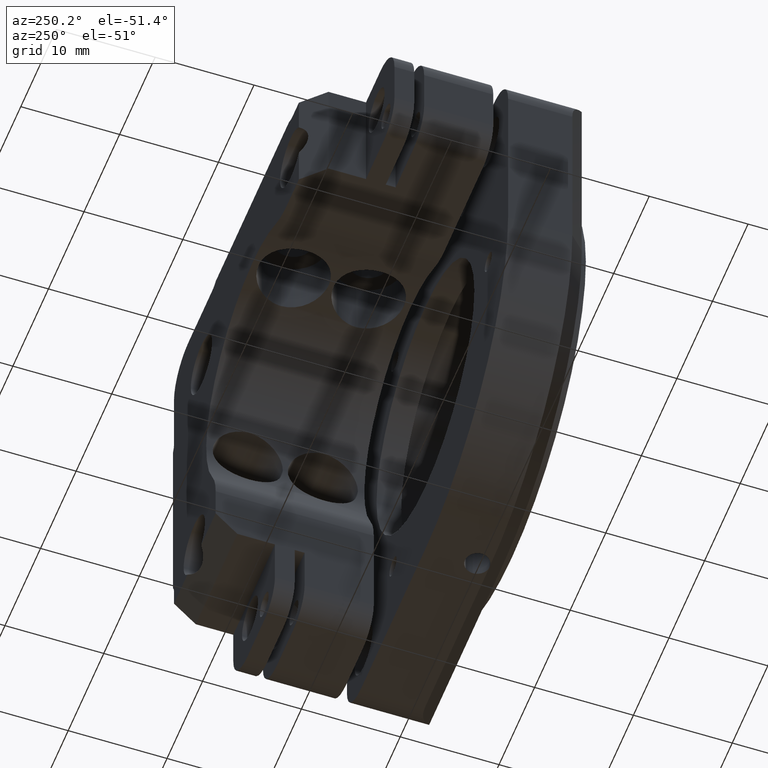
[diagram: clean part render]
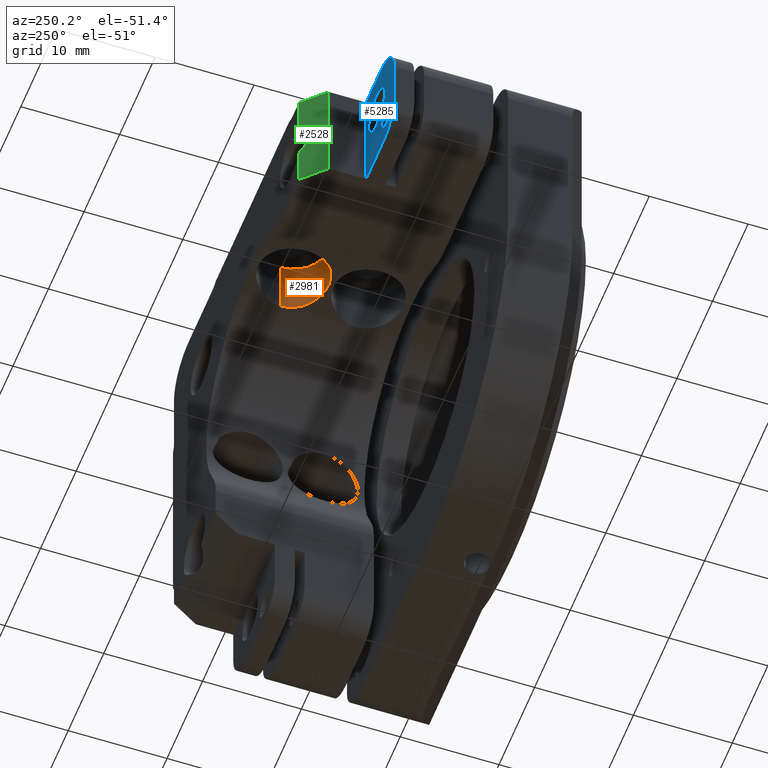
[diagram: same view with three faces highlighted in distinct colors, each labeled with its STEP entity id]
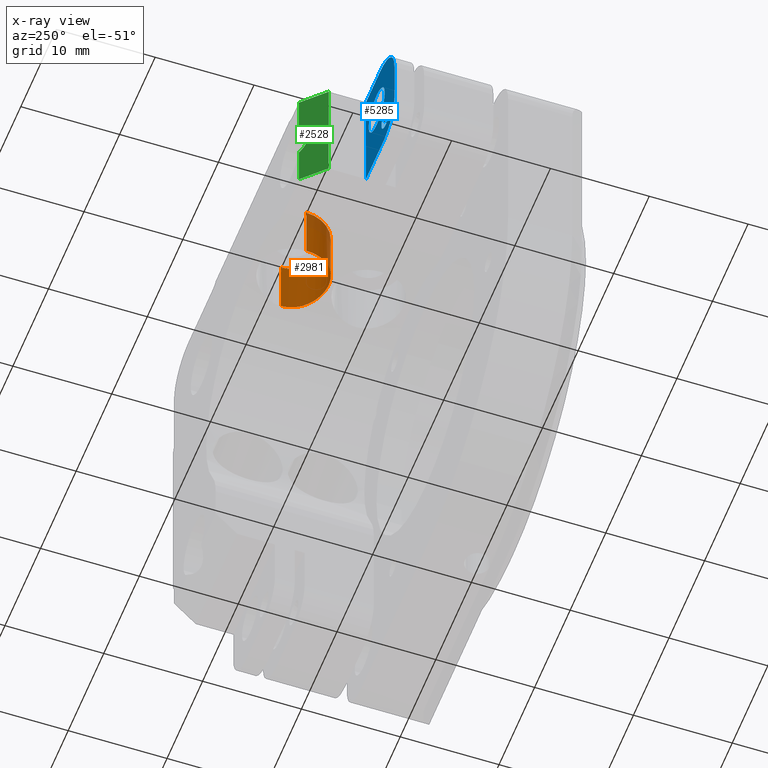
[diagram: x-ray of the same camera — body ghosted, the three highlighted faces saturated]
A machine part, auxiliary view with three faces highlighted in distinct colors.
The next image is the same camera in x-ray (body ghosted, the three faces saturated) — at least one of them is partly hidden behind the body in this view.
Their STEP definitions:

[orange] entity #2981 — the highlighted cylindrical surface (partial cylindrical patch) has radius 3.55 mm, axis along (0, 0, 1).
#87 = CARTESIAN_POINT ( 'NONE',  ( 124.9816351898140000, 68.51614554544700300, -9.817038261161121300 ) ) ;
#96 = ORIENTED_EDGE ( 'NONE', *, *, #2004, .T. ) ;
#136 = CARTESIAN_POINT ( 'NONE',  ( 125.8273634213219800, 66.20499389009067700, -9.613160461810881700 ) ) ;
#450 = CARTESIAN_POINT ( 'NONE',  ( 132.0816351898139900, 68.51614554544700300, -40.00000000000000000 ) ) ;
#660 = CARTESIAN_POINT ( 'NONE',  ( 128.2060594988095400, 64.97370341461730400, -9.350000000000006800 ) ) ;
#733 = CARTESIAN_POINT ( 'NONE',  ( 128.4348757045767700, 64.96746443804511300, -9.349999999999445400 ) ) ;
#793 = CARTESIAN_POINT ( 'NONE',  ( 132.0816351898139900, 68.51614554544700300, -9.871973503120214500 ) ) ;
#820 = CARTESIAN_POINT ( 'NONE',  ( 130.2551931100754500, 65.40353956257307300, -9.476487455404273100 ) ) ;
#870 = CARTESIAN_POINT ( 'NONE',  ( 130.8380795961157300, 65.80732717045957300, -9.572911974570143200 ) ) ;
#947 = CARTESIAN_POINT ( 'NONE',  ( 124.9816351898140000, 68.51614554544700300, -9.817038261161121300 ) ) ;
#963 = VECTOR ( 'NONE', #5489, 1000.000000000000000 ) ;
#1247 = CARTESIAN_POINT ( 'NONE',  ( 125.0926697090487800, 67.60594836422311000, -9.786889044362819600 ) ) ;
#1421 = CARTESIAN_POINT ( 'NONE',  ( 132.0574229696146300, 68.03956981338583900, -9.864826675623815400 ) ) ;
#1681 = B_SPLINE_CURVE_WITH_KNOTS ( 'NONE', 3,
 ( #793, #4239, #1421, #4418, #6202, #3874, #5552, #2592, #6122, #870, #6096, #820, #2617, #2694, #6151, #3171, #6777, #6697 ),
 .UNSPECIFIED., .F., .F.,
 ( 4, 2, 2, 2, 2, 2, 2, 2, 4 ),
 ( 0.01062670440922161900, 0.01133600254528292800, 0.01204530068134423800, 0.01275459881740554800, 0.01346389695346685700, 0.01417319508952816600, 0.01488249322558947600, 0.01559179136165078600, 0.01630108949771209500 ),
 .UNSPECIFIED. ) ;
#1768 = VERTEX_POINT ( 'NONE', #947 ) ;
#1826 = CARTESIAN_POINT ( 'NONE',  ( 127.3128327934245900, 65.17402658808551100, -9.396788759075715100 ) ) ;
#1899 = CARTESIAN_POINT ( 'NONE',  ( 125.6859631657565900, 66.38164519856653100, -9.643320246725723500 ) ) ;
#2004 = EDGE_CURVE ( 'NONE', #1768, #6874, #3463, .T. ) ;
#2149 = VERTEX_POINT ( 'NONE', #6739 ) ;
#2217 = ORIENTED_EDGE ( 'NONE', *, *, #6415, .F. ) ;
#2425 = CARTESIAN_POINT ( 'NONE',  ( 125.1578904385040800, 67.38821265087830200, -9.769490417413811300 ) ) ;
#2474 = CARTESIAN_POINT ( 'NONE',  ( 126.1453081416160400, 65.87797364222342400, -9.552184479234727000 ) ) ;
#2505 = CARTESIAN_POINT ( 'NONE',  ( 124.9816351898139900, 68.28706794442420900, -9.817038261161123100 ) ) ;
#2557 = DIRECTION ( 'NONE',  ( 0.0000000000000000000, 0.0000000000000000000, 1.000000000000000000 ) ) ;
#2592 = CARTESIAN_POINT ( 'NONE',  ( 131.3279517005623500, 66.31645445005122500, -9.675267540200136900 ) ) ;
#2611 = EDGE_CURVE ( 'NONE', #2149, #6763, #3025, .T. ) ;
#2617 = CARTESIAN_POINT ( 'NONE',  ( 130.0452949881739400, 65.29641597399886200, -9.448253140820529700 ) ) ;
#2694 = CARTESIAN_POINT ( 'NONE',  ( 129.6072701915566900, 65.12485761289764200, -9.401099913342905600 ) ) ;
#2767 = FACE_OUTER_BOUND ( 'NONE', #5848, .T. ) ;
#2890 = CARTESIAN_POINT ( 'NONE',  ( 124.9816351898140000, 68.51614554544700300, -3.999999999999996400 ) ) ;
#2919 = ORIENTED_EDGE ( 'NONE', *, *, #2611, .F. ) ;
#2981 = ADVANCED_FACE ( 'NONE', ( #2767 ), #6892, .F. ) ;
#2995 = DIRECTION ( 'NONE',  ( -0.0000000000000000000, -0.0000000000000000000, -1.000000000000000000 ) ) ;
#3025 = LINE ( 'NONE', #450, #3660 ) ;
#3171 = CARTESIAN_POINT ( 'NONE',  ( 128.9077783386946700, 64.97813593535757100, -9.356488090370900700 ) ) ;
#3329 = ORIENTED_EDGE ( 'NONE', *, *, #6567, .T. ) ;
#3463 = LINE ( 'NONE', #4334, #963 ) ;
#3525 = AXIS2_PLACEMENT_3D ( 'NONE', #4276, #2557, #6034 ) ;
#3605 = CARTESIAN_POINT ( 'NONE',  ( 125.3297108990816200, 66.96628519752550800, -9.725982995800629600 ) ) ;
#3660 = VECTOR ( 'NONE', #3998, 1000.000000000000000 ) ;
#3874 = CARTESIAN_POINT ( 'NONE',  ( 131.7070439951004300, 66.91136464672520400, -9.768184472587170900 ) ) ;
#3998 = DIRECTION ( 'NONE',  ( 0.0000000000000000000, 0.0000000000000000000, 1.000000000000000000 ) ) ;
#4239 = CARTESIAN_POINT ( 'NONE',  ( 132.0816351898139700, 68.27690668779582900, -9.871973503120191400 ) ) ;
#4276 = CARTESIAN_POINT ( 'NONE',  ( 128.5316351898140100, 68.51614554544700300, -40.00000000000000000 ) ) ;
#4334 = CARTESIAN_POINT ( 'NONE',  ( 124.9816351898140000, 68.51614554544700300, -40.00000000000000000 ) ) ;
#4418 = CARTESIAN_POINT ( 'NONE',  ( 131.9631900599268000, 67.57660572724557800, -9.837869908086053900 ) ) ;
#4426 = B_SPLINE_CURVE_WITH_KNOTS ( 'NONE', 3,
 ( #733, #660, #6504, #4839, #1826, #6533, #5983, #5420, #2474, #136, #1899, #5929, #3605, #2425, #1247, #6009, #2505, #87 ),
 .UNSPECIFIED., .F., .F.,
 ( 4, 2, 2, 2, 2, 2, 2, 2, 4 ),
 ( 0.01630108949771209500, 0.01698526547502609100, 0.01766944145234008700, 0.01835361742965408200, 0.01903779340696807500, 0.01972196938428207000, 0.02040614536159606600, 0.02109032133891006200, 0.02177449731622405800 ),
 .UNSPECIFIED. ) ;
#4493 = AXIS2_PLACEMENT_3D ( 'NONE', #7643, #2995, #5298 ) ;
#4732 = CIRCLE ( 'NONE', #4493, 3.549999999999997600 ) ;
#4831 = ORIENTED_EDGE ( 'NONE', *, *, #5677, .T. ) ;
#4839 = CARTESIAN_POINT ( 'NONE',  ( 127.5293052543937900, 65.10294642148105000, -9.379662293623717100 ) ) ;
#5298 = DIRECTION ( 'NONE',  ( 1.000000000000000000, 0.0000000000000000000, 0.0000000000000000000 ) ) ;
#5420 = CARTESIAN_POINT ( 'NONE',  ( 126.3204778130821500, 65.72963652889056600, -9.521721023548213500 ) ) ;
#5489 = DIRECTION ( 'NONE',  ( 0.0000000000000000000, 0.0000000000000000000, 1.000000000000000000 ) ) ;
#5552 = CARTESIAN_POINT ( 'NONE',  ( 131.5941592624150200, 66.70535200443060800, -9.738986597135602000 ) ) ;
#5677 = EDGE_CURVE ( 'NONE', #7113, #1768, #4426, .T. ) ;
#5848 = EDGE_LOOP ( 'NONE', ( #3329, #4831, #96, #2217, #2919 ) ) ;
#5929 = CARTESIAN_POINT ( 'NONE',  ( 125.4374661178730400, 66.76113592906885700, -9.699633749654138300 ) ) ;
#5983 = CARTESIAN_POINT ( 'NONE',  ( 126.6927177837376300, 65.47111151974948500, -9.465889409039917300 ) ) ;
#6009 = CARTESIAN_POINT ( 'NONE',  ( 125.0042287879057300, 68.05533477910259400, -9.810751237281820600 ) ) ;
#6034 = DIRECTION ( 'NONE',  ( 1.000000000000000000, 0.0000000000000000000, 0.0000000000000000000 ) ) ;
#6096 = CARTESIAN_POINT ( 'NONE',  ( 130.6546607739821000, 65.66102203181642900, -9.539323400449518400 ) ) ;
#6122 = CARTESIAN_POINT ( 'NONE',  ( 131.1740471577105000, 66.13391092645005600, -9.640699975835470800 ) ) ;
#6151 = CARTESIAN_POINT ( 'NONE',  ( 129.3760773195743600, 65.05985950997178700, -9.381995983692975800 ) ) ;
#6202 = CARTESIAN_POINT ( 'NONE',  ( 131.8920109544805300, 67.34720690983142800, -9.817746286033459700 ) ) ;
#6225 = CARTESIAN_POINT ( 'NONE',  ( 132.0816351898139900, 68.51614554544700300, -3.999999999999996400 ) ) ;
#6415 = EDGE_CURVE ( 'NONE', #6763, #6874, #4732, .T. ) ;
#6504 = CARTESIAN_POINT ( 'NONE',  ( 127.9746404561258800, 65.00269276706431800, -9.356236050559696000 ) ) ;
#6533 = CARTESIAN_POINT ( 'NONE',  ( 126.8923916652462700, 65.35891272638494300, -9.440104387142218600 ) ) ;
#6567 = EDGE_CURVE ( 'NONE', #2149, #7113, #1681, .T. ) ;
#6697 = CARTESIAN_POINT ( 'NONE',  ( 128.4348757045767700, 64.96746443804511300, -9.349999999999445400 ) ) ;
#6739 = CARTESIAN_POINT ( 'NONE',  ( 132.0816351898139900, 68.51614554544700300, -9.871973503120214500 ) ) ;
#6763 = VERTEX_POINT ( 'NONE', #6225 ) ;
#6777 = CARTESIAN_POINT ( 'NONE',  ( 128.6720937795058700, 64.96099637339878500, -9.349999999999996100 ) ) ;
#6874 = VERTEX_POINT ( 'NONE', #2890 ) ;
#6892 = CYLINDRICAL_SURFACE ( 'NONE', #3525, 3.549999999999997600 ) ;
#7113 = VERTEX_POINT ( 'NONE', #7208 ) ;
#7208 = CARTESIAN_POINT ( 'NONE',  ( 128.4348757045767700, 64.96746443804511300, -9.349999999999445400 ) ) ;
#7643 = CARTESIAN_POINT ( 'NONE',  ( 128.5316351898140100, 68.51614554544700300, -3.999999999999996400 ) ) ;

[blue] entity #5285 — the highlighted planar face has unit normal (0, -1, 0).
#33 = CARTESIAN_POINT ( 'NONE',  ( 105.1848757045774900, 66.71614554938511800, -8.999999999999980500 ) ) ;
#53 = CARTESIAN_POINT ( 'NONE',  ( 108.1848757045770000, 66.71614554938511800, -8.999999999999980500 ) ) ;
#61 = FACE_BOUND ( 'NONE', #7387, .T. ) ;
#109 = DIRECTION ( 'NONE',  ( 0.0000000000000000000, 1.000000000000000000, 0.0000000000000000000 ) ) ;
#183 = DIRECTION ( 'NONE',  ( 0.0000000000000000000, -1.000000000000000000, 0.0000000000000000000 ) ) ;
#275 = ORIENTED_EDGE ( 'NONE', *, *, #2637, .F. ) ;
#432 = FACE_BOUND ( 'NONE', #3063, .T. ) ;
#466 = EDGE_CURVE ( 'NONE', #1234, #7069, #1240, .T. ) ;
#632 = AXIS2_PLACEMENT_3D ( 'NONE', #5930, #1803, #6558 ) ;
#677 = DIRECTION ( 'NONE',  ( 0.0000000000000000000, 0.0000000000000000000, 1.000000000000000000 ) ) ;
#747 = PLANE ( 'NONE',  #6144 ) ;
#1149 = AXIS2_PLACEMENT_3D ( 'NONE', #3645, #109, #2421 ) ;
#1150 = DIRECTION ( 'NONE',  ( -0.0000000000000000000, -1.000000000000000000, -0.0000000000000000000 ) ) ;
#1234 = VERTEX_POINT ( 'NONE', #33 ) ;
#1240 = CIRCLE ( 'NONE', #3851, 3.000000000000000000 ) ;
#1254 = VECTOR ( 'NONE', #4709, 1000.000000000000000 ) ;
#1407 = CARTESIAN_POINT ( 'NONE',  ( 110.1848756456780200, 66.71614554938511800, -7.250000058899080300 ) ) ;
#1577 = CARTESIAN_POINT ( 'NONE',  ( 109.1848757045780800, 66.71614554938511800, -0.2999999999992558100 ) ) ;
#1792 = ORIENTED_EDGE ( 'NONE', *, *, #2466, .F. ) ;
#1803 = DIRECTION ( 'NONE',  ( 0.0000000000000000000, 1.000000000000000000, 0.0000000000000000000 ) ) ;
#1822 = LINE ( 'NONE', #6440, #1254 ) ;
#2080 = CARTESIAN_POINT ( 'NONE',  ( 109.1848757045780000, 66.71614554938511800, -0.2999999999992559700 ) ) ;
#2208 = LINE ( 'NONE', #2080, #5952 ) ;
#2290 = AXIS2_PLACEMENT_3D ( 'NONE', #2298, #1150, #4076 ) ;
#2298 = CARTESIAN_POINT ( 'NONE',  ( 109.1848757045780000, 66.71614554938511800, -4.299999999999260000 ) ) ;
#2301 = VERTEX_POINT ( 'NONE', #6944 ) ;
#2421 = DIRECTION ( 'NONE',  ( 0.0000000000000000000, 0.0000000000000000000, 1.000000000000000000 ) ) ;
#2435 = VERTEX_POINT ( 'NONE', #6668 ) ;
#2466 = EDGE_CURVE ( 'NONE', #6067, #2435, #3869, .T. ) ;
#2637 = EDGE_CURVE ( 'NONE', #6822, #2301, #7454, .T. ) ;
#2771 = ORIENTED_EDGE ( 'NONE', *, *, #6942, .F. ) ;
#2783 = EDGE_CURVE ( 'NONE', #2435, #6067, #5404, .T. ) ;
#2947 = ORIENTED_EDGE ( 'NONE', *, *, #4490, .F. ) ;
#2985 = ORIENTED_EDGE ( 'NONE', *, *, #3022, .F. ) ;
#3022 = EDGE_CURVE ( 'NONE', #6725, #6822, #2208, .T. ) ;
#3033 = DIRECTION ( 'NONE',  ( -0.0000000000000000000, -1.000000000000000000, -0.0000000000000000000 ) ) ;
#3063 = EDGE_LOOP ( 'NONE', ( #2771, #5056 ) ) ;
#3091 = EDGE_CURVE ( 'NONE', #3631, #5668, #7352, .T. ) ;
#3167 = EDGE_CURVE ( 'NONE', #5221, #6725, #1822, .T. ) ;
#3272 = DIRECTION ( 'NONE',  ( 0.0000000000000000000, 0.0000000000000000000, 1.000000000000000000 ) ) ;
#3425 = CARTESIAN_POINT ( 'NONE',  ( 107.5848756456780000, 66.71614554938511800, -9.000000058899079400 ) ) ;
#3511 = AXIS2_PLACEMENT_3D ( 'NONE', #6198, #5064, #3272 ) ;
#3551 = VECTOR ( 'NONE', #6359, 1000.000000000000000 ) ;
#3631 = VERTEX_POINT ( 'NONE', #5707 ) ;
#3645 = CARTESIAN_POINT ( 'NONE',  ( 110.1848756456780200, 66.71614554938511800, -5.000000058899080300 ) ) ;
#3652 = LINE ( 'NONE', #4287, #7533 ) ;
#3656 = DIRECTION ( 'NONE',  ( 0.0000000000000000000, -0.0000000000000000000, -1.000000000000000000 ) ) ;
#3798 = DIRECTION ( 'NONE',  ( 0.0000000000000000000, 1.000000000000000000, 0.0000000000000000000 ) ) ;
#3851 = AXIS2_PLACEMENT_3D ( 'NONE', #53, #3033, #677 ) ;
#3869 = CIRCLE ( 'NONE', #3511, 2.250000000000000400 ) ;
#3917 = ORIENTED_EDGE ( 'NONE', *, *, #2783, .F. ) ;
#4051 = EDGE_LOOP ( 'NONE', ( #2947, #275, #2985, #6272, #6797, #5302 ) ) ;
#4076 = DIRECTION ( 'NONE',  ( 0.0000000000000000000, 0.0000000000000000000, 1.000000000000000000 ) ) ;
#4287 = CARTESIAN_POINT ( 'NONE',  ( 105.1848757045780000, 66.71614554938511800, -8.999999999999959100 ) ) ;
#4490 = EDGE_CURVE ( 'NONE', #2301, #1234, #3652, .T. ) ;
#4709 = DIRECTION ( 'NONE',  ( -0.0000000000000000000, 0.0000000000000000000, 1.000000000000000000 ) ) ;
#4784 = CARTESIAN_POINT ( 'NONE',  ( 113.1848757045769800, 66.71614554938511800, -12.00000000000005300 ) ) ;
#4939 = FACE_OUTER_BOUND ( 'NONE', #4051, .T. ) ;
#5056 = ORIENTED_EDGE ( 'NONE', *, *, #3091, .F. ) ;
#5064 = DIRECTION ( 'NONE',  ( 0.0000000000000000000, 1.000000000000000000, 0.0000000000000000000 ) ) ;
#5221 = VERTEX_POINT ( 'NONE', #4784 ) ;
#5285 = ADVANCED_FACE ( 'NONE', ( #432, #4939, #61 ), #747, .F. ) ;
#5302 = ORIENTED_EDGE ( 'NONE', *, *, #466, .F. ) ;
#5317 = CARTESIAN_POINT ( 'NONE',  ( 108.1848757045769700, 66.71614554938511800, -11.99999999999997300 ) ) ;
#5404 = CIRCLE ( 'NONE', #1149, 2.250000000000000400 ) ;
#5456 = DIRECTION ( 'NONE',  ( 0.0000000000000000000, -0.0000000000000000000, -1.000000000000000000 ) ) ;
#5565 = DIRECTION ( 'NONE',  ( -1.000000000000000000, -0.0000000000000000000, 3.468182901963990000E-014 ) ) ;
#5580 = EDGE_CURVE ( 'NONE', #7069, #5221, #6865, .T. ) ;
#5668 = VERTEX_POINT ( 'NONE', #6611 ) ;
#5707 = CARTESIAN_POINT ( 'NONE',  ( 107.5848756456780000, 66.71614554938511800, -10.25000005889907900 ) ) ;
#5780 = AXIS2_PLACEMENT_3D ( 'NONE', #3425, #3798, #7360 ) ;
#5930 = CARTESIAN_POINT ( 'NONE',  ( 107.5848756456780000, 66.71614554938511800, -9.000000058899079400 ) ) ;
#5952 = VECTOR ( 'NONE', #5565, 1000.000000000000000 ) ;
#6067 = VERTEX_POINT ( 'NONE', #1407 ) ;
#6089 = CIRCLE ( 'NONE', #632, 1.250000000000000200 ) ;
#6144 = AXIS2_PLACEMENT_3D ( 'NONE', #7325, #183, #5456 ) ;
#6198 = CARTESIAN_POINT ( 'NONE',  ( 110.1848756456780200, 66.71614554938511800, -5.000000058899080300 ) ) ;
#6272 = ORIENTED_EDGE ( 'NONE', *, *, #3167, .F. ) ;
#6359 = DIRECTION ( 'NONE',  ( 1.000000000000000000, -0.0000000000000000000, -1.602430241076470100E-014 ) ) ;
#6440 = CARTESIAN_POINT ( 'NONE',  ( 113.1848757045770000, 66.71614554938511800, -8.999999999999959100 ) ) ;
#6558 = DIRECTION ( 'NONE',  ( 0.0000000000000000000, 0.0000000000000000000, 1.000000000000000000 ) ) ;
#6611 = CARTESIAN_POINT ( 'NONE',  ( 107.5848756456780000, 66.71614554938511800, -7.750000058899079400 ) ) ;
#6668 = CARTESIAN_POINT ( 'NONE',  ( 110.1848756456780200, 66.71614554938511800, -2.750000058899079800 ) ) ;
#6725 = VERTEX_POINT ( 'NONE', #6905 ) ;
#6797 = ORIENTED_EDGE ( 'NONE', *, *, #5580, .F. ) ;
#6822 = VERTEX_POINT ( 'NONE', #1577 ) ;
#6865 = LINE ( 'NONE', #7569, #3551 ) ;
#6905 = CARTESIAN_POINT ( 'NONE',  ( 113.1848757045769800, 66.71614554938511800, -0.2999999999994038500 ) ) ;
#6942 = EDGE_CURVE ( 'NONE', #5668, #3631, #6089, .T. ) ;
#6944 = CARTESIAN_POINT ( 'NONE',  ( 105.1848757045780000, 66.71614554938511800, -4.299999999999710300 ) ) ;
#7069 = VERTEX_POINT ( 'NONE', #5317 ) ;
#7325 = CARTESIAN_POINT ( 'NONE',  ( 108.1848757045770000, 66.71614554938511800, -8.999999999999959100 ) ) ;
#7352 = CIRCLE ( 'NONE', #5780, 1.250000000000000200 ) ;
#7360 = DIRECTION ( 'NONE',  ( 0.0000000000000000000, 0.0000000000000000000, 1.000000000000000000 ) ) ;
#7387 = EDGE_LOOP ( 'NONE', ( #3917, #1792 ) ) ;
#7454 = CIRCLE ( 'NONE', #2290, 4.000000000000000000 ) ;
#7533 = VECTOR ( 'NONE', #3656, 1000.000000000000000 ) ;
#7569 = CARTESIAN_POINT ( 'NONE',  ( 115.9792924017070000, 66.71614554938511800, -12.00000000000009900 ) ) ;

[green] entity #2528 — the highlighted planar face has unit normal (0.7071, -0.7071, -0).
#38 = ORIENTED_EDGE ( 'NONE', *, *, #7319, .F. ) ;
#349 = CARTESIAN_POINT ( 'NONE',  ( 115.3848757045770100, 72.71614554938510400, -4.299999999999269700 ) ) ;
#368 = FACE_OUTER_BOUND ( 'NONE', #4329, .T. ) ;
#487 = ORIENTED_EDGE ( 'NONE', *, *, #2058, .F. ) ;
#517 = DIRECTION ( 'NONE',  ( 0.0000000000000000000, -0.0000000000000000000, 1.000000000000000000 ) ) ;
#596 = LINE ( 'NONE', #5687, #7613 ) ;
#619 = EDGE_CURVE ( 'NONE', #4186, #3090, #5123, .T. ) ;
#697 = AXIS2_PLACEMENT_3D ( 'NONE', #349, #7401, #3756 ) ;
#731 = CARTESIAN_POINT ( 'NONE',  ( 114.4085598286719000, 71.73982967348000300, -5.239683166026043900 ) ) ;
#768 = EDGE_CURVE ( 'NONE', #6277, #3972, #596, .T. ) ;
#1624 = ORIENTED_EDGE ( 'NONE', *, *, #768, .F. ) ;
#1997 = EDGE_CURVE ( 'NONE', #3972, #7562, #2150, .T. ) ;
#2058 = EDGE_CURVE ( 'NONE', #2079, #4186, #6486, .T. ) ;
#2079 = VERTEX_POINT ( 'NONE', #4380 ) ;
#2118 = ORIENTED_EDGE ( 'NONE', *, *, #619, .F. ) ;
#2150 =( BOUNDED_CURVE ( )  B_SPLINE_CURVE ( 3, ( #6639, #6578, #731, #3673 ),
 .UNSPECIFIED., .F., .F. ) 
 B_SPLINE_CURVE_WITH_KNOTS ( ( 4, 4 ),
 ( 2.444429489368725900, 3.838755817810859000 ),
 .UNSPECIFIED. ) 
 CURVE ( )  GEOMETRIC_REPRESENTATION_ITEM ( )  RATIONAL_B_SPLINE_CURVE ( ( 1.000000000000000000, 0.8444444313557788500, 0.8444444313557788500, 1.000000000000000000 ) ) 
 REPRESENTATION_ITEM ( '' )  );
#2287 = CARTESIAN_POINT ( 'NONE',  ( 115.3848757045770100, 72.71614554938510400, -4.299999999999260000 ) ) ;
#2528 = ADVANCED_FACE ( 'NONE', ( #368 ), #5498, .F. ) ;
#2540 = ORIENTED_EDGE ( 'NONE', *, *, #1997, .F. ) ;
#2912 = VECTOR ( 'NONE', #3473, 1000.000000000000100 ) ;
#3090 = VERTEX_POINT ( 'NONE', #5643 ) ;
#3130 = DIRECTION ( 'NONE',  ( -5.930678550347720800E-016, 5.930678550347745500E-016, -1.000000000000000000 ) ) ;
#3473 = DIRECTION ( 'NONE',  ( 0.7071067811865497900, 0.7071067811865453500, -1.170878609103667100E-014 ) ) ;
#3673 = CARTESIAN_POINT ( 'NONE',  ( 115.3848757045770100, 72.71614554938510400, -4.073863960141958200 ) ) ;
#3710 = CARTESIAN_POINT ( 'NONE',  ( 113.1848757045770000, 70.51614554938511500, -4.299999999999269700 ) ) ;
#3756 = DIRECTION ( 'NONE',  ( 0.7071067811865489100, 0.7071067811865460200, 0.0000000000000000000 ) ) ;
#3828 = DIRECTION ( 'NONE',  ( -0.7071067811865497900, -0.7071067811865453500, 2.453269466693397800E-014 ) ) ;
#3890 = ORIENTED_EDGE ( 'NONE', *, *, #5096, .F. ) ;
#3972 = VERTEX_POINT ( 'NONE', #4296 ) ;
#4112 = CARTESIAN_POINT ( 'NONE',  ( 113.1848757045770000, 70.51614554938511500, -12.00000000000005300 ) ) ;
#4186 = VERTEX_POINT ( 'NONE', #5685 ) ;
#4190 = CARTESIAN_POINT ( 'NONE',  ( 115.3848757045770100, 72.71614554938510400, -4.073863960141958200 ) ) ;
#4296 = CARTESIAN_POINT ( 'NONE',  ( 115.3848757045770100, 72.71614554938510400, -7.926136157656238800 ) ) ;
#4329 = EDGE_LOOP ( 'NONE', ( #2118, #487, #38, #2540, #1624, #3890 ) ) ;
#4380 = CARTESIAN_POINT ( 'NONE',  ( 115.3848757045770100, 72.71614554938510400, -0.2999999999994732400 ) ) ;
#4405 = CARTESIAN_POINT ( 'NONE',  ( 115.3848757045770100, 72.71614554938510400, -0.2999999999994710200 ) ) ;
#5034 = LINE ( 'NONE', #4112, #2912 ) ;
#5096 = EDGE_CURVE ( 'NONE', #3090, #6277, #5034, .T. ) ;
#5123 = LINE ( 'NONE', #3710, #7246 ) ;
#5163 = CARTESIAN_POINT ( 'NONE',  ( 115.3848757045770100, 72.71614554938510400, -12.00000000000009400 ) ) ;
#5443 = VECTOR ( 'NONE', #517, 1000.000000000000000 ) ;
#5498 = PLANE ( 'NONE',  #697 ) ;
#5643 = CARTESIAN_POINT ( 'NONE',  ( 113.1848757045769800, 70.51614554938511500, -12.00000000000005300 ) ) ;
#5685 = CARTESIAN_POINT ( 'NONE',  ( 113.1848757045769800, 70.51614554938511500, -0.2999999999994224000 ) ) ;
#5687 = CARTESIAN_POINT ( 'NONE',  ( 115.3848757045770100, 72.71614554938510400, -4.299999999999260000 ) ) ;
#6262 = DIRECTION ( 'NONE',  ( 0.0000000000000000000, -0.0000000000000000000, 1.000000000000000000 ) ) ;
#6271 = LINE ( 'NONE', #2287, #5443 ) ;
#6277 = VERTEX_POINT ( 'NONE', #5163 ) ;
#6300 = VECTOR ( 'NONE', #3828, 1000.000000000000100 ) ;
#6486 = LINE ( 'NONE', #4405, #6300 ) ;
#6578 = CARTESIAN_POINT ( 'NONE',  ( 114.4085598286719000, 71.73982967348000300, -6.760316951772154900 ) ) ;
#6639 = CARTESIAN_POINT ( 'NONE',  ( 115.3848757045770100, 72.71614554938510400, -7.926136157656238800 ) ) ;
#7246 = VECTOR ( 'NONE', #3130, 1000.000000000000000 ) ;
#7319 = EDGE_CURVE ( 'NONE', #7562, #2079, #6271, .T. ) ;
#7401 = DIRECTION ( 'NONE',  ( 0.7071067811865461300, -0.7071067811865490200, -8.387246039976971100E-016 ) ) ;
#7562 = VERTEX_POINT ( 'NONE', #4190 ) ;
#7613 = VECTOR ( 'NONE', #6262, 1000.000000000000000 ) ;